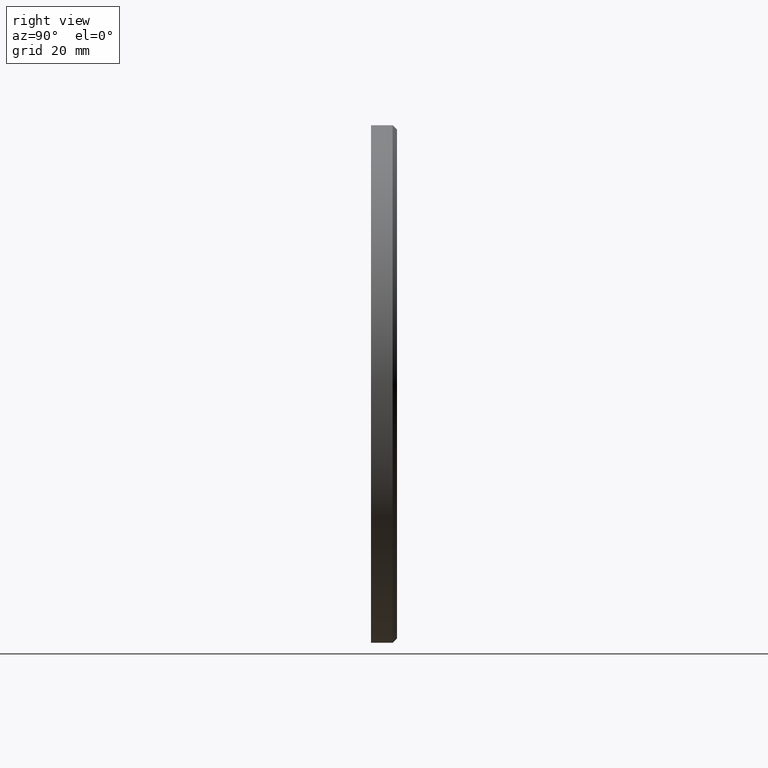
[diagram: clean part render]
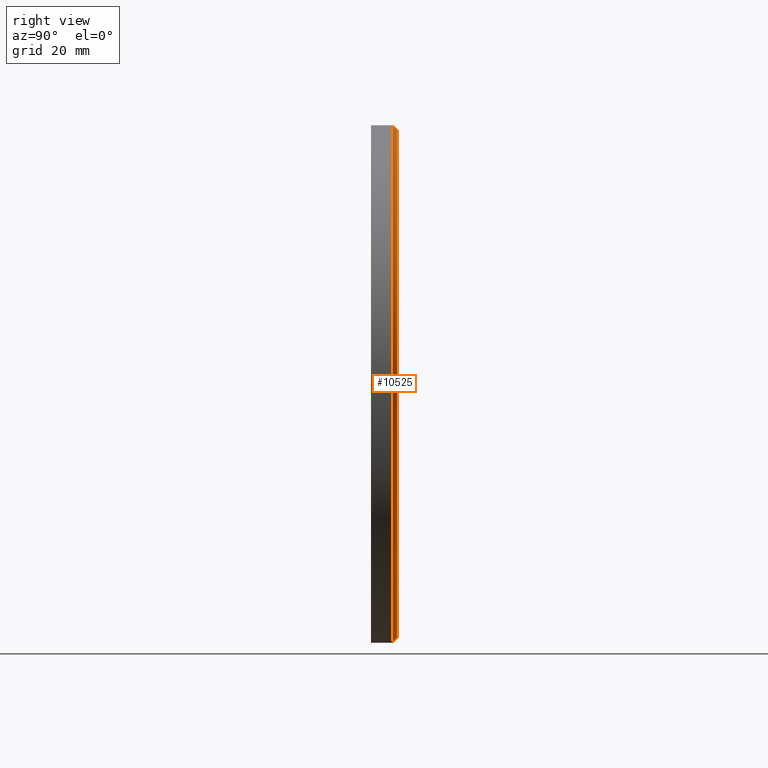
[diagram: same view with one face highlighted and labeled with its STEP entity id]
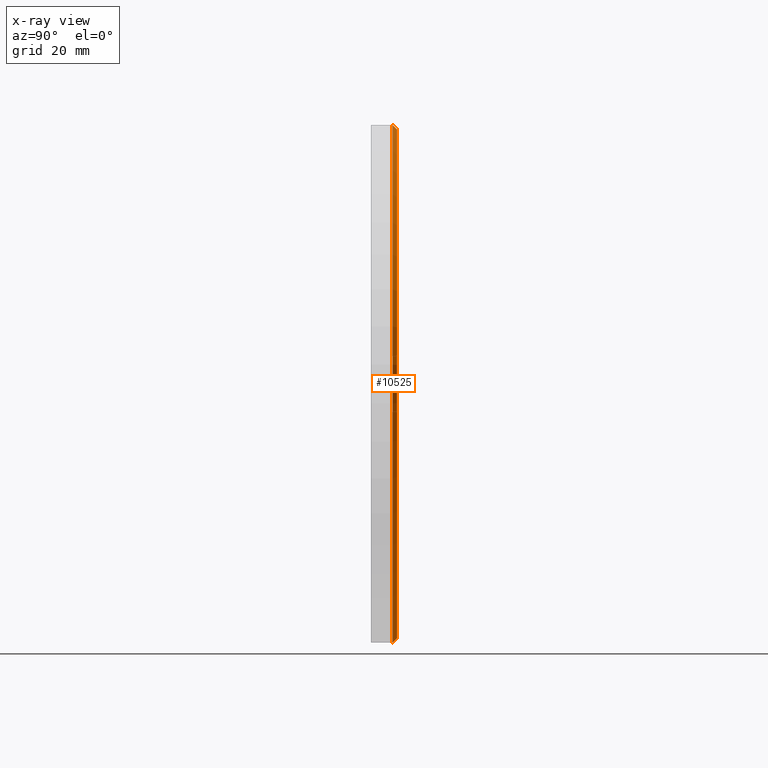
[diagram: x-ray of the same camera — body ghosted, the highlighted face saturated]
A machine part, right view. The second image highlights one B-rep face of the part: STEP entity #10525.
The next image is the same camera in x-ray: the body ghosted, the highlighted face saturated — about 0% of this face is hidden behind the body in this view.
In plain terms, the highlighted conical surface has half-angle 45 deg.
Its self-contained STEP definition (entity closure, byte-faithful):
#148 = AXIS2_PLACEMENT_3D ( 'NONE', #8820, #1446, #9893 ) ;
#326 = ORIENTED_EDGE ( 'NONE', *, *, #4838, .F. ) ;
#1355 = CIRCLE ( 'NONE', #148, 60.00000000000000000 ) ;
#1446 = DIRECTION ( 'NONE',  ( 0.000000000000000000, -1.000000000000000000, 0.000000000000000000 ) ) ;
#1730 = DIRECTION ( 'NONE',  ( 0.000000000000000000, -1.000000000000000000, 0.000000000000000000 ) ) ;
#1792 = ORIENTED_EDGE ( 'NONE', *, *, #5654, .F. ) ;
#1943 = CARTESIAN_POINT ( 'NONE',  ( 0.000000000000000000, 6.000000000000000000, 0.000000000000000000 ) ) ;
#2150 = VERTEX_POINT ( 'NONE', #11498 ) ;
#2452 = CARTESIAN_POINT ( 'NONE',  ( 7.347880794884118356E-15, 4.999999999999971578, 60.00000000000000000 ) ) ;
#2868 = LINE ( 'NONE', #7333, #9390 ) ;
#3201 = CARTESIAN_POINT ( 'NONE',  ( 0.000000000000000000, 6.000000000000000000, -58.99999999999998579 ) ) ;
#3743 = CONICAL_SURFACE ( 'NONE', #3971, 58.99999999999998579, 0.7853981633974415066 ) ;
#3971 = AXIS2_PLACEMENT_3D ( 'NONE', #8093, #1730, #11427 ) ;
#4304 = DIRECTION ( 'NONE',  ( 0.000000000000000000, 1.000000000000000000, 0.000000000000000000 ) ) ;
#4371 = ORIENTED_EDGE ( 'NONE', *, *, #8044, .T. ) ;
#4497 = VERTEX_POINT ( 'NONE', #2452 ) ;
#4727 = ORIENTED_EDGE ( 'NONE', *, *, #5216, .F. ) ;
#4838 = EDGE_CURVE ( 'NONE', #5758, #4497, #1355, .T. ) ;
#5216 = EDGE_CURVE ( 'NONE', #2150, #5758, #6681, .T. ) ;
#5654 = EDGE_CURVE ( 'NONE', #12027, #2150, #11176, .T. ) ;
#5758 = VERTEX_POINT ( 'NONE', #13012 ) ;
#6214 = AXIS2_PLACEMENT_3D ( 'NONE', #1943, #4304, #7280 ) ;
#6681 = LINE ( 'NONE', #3201, #7677 ) ;
#7280 = DIRECTION ( 'NONE',  ( 0.000000000000000000, 0.000000000000000000, 1.000000000000000000 ) ) ;
#7333 = CARTESIAN_POINT ( 'NONE',  ( 7.225416114969381630E-15, 6.000000000000000000, 58.99999999999998579 ) ) ;
#7677 = VECTOR ( 'NONE', #10644, 1000.000000000000000 ) ;
#8044 = EDGE_CURVE ( 'NONE', #12027, #4497, #2868, .T. ) ;
#8093 = CARTESIAN_POINT ( 'NONE',  ( 0.000000000000000000, 6.000000000000000000, 0.000000000000000000 ) ) ;
#8260 = DIRECTION ( 'NONE',  ( 8.659560562354874926E-17, -0.7071067811865524577, 0.7071067811865426878 ) ) ;
#8820 = CARTESIAN_POINT ( 'NONE',  ( 0.000000000000000000, 4.999999999999971578, 0.000000000000000000 ) ) ;
#9390 = VECTOR ( 'NONE', #8260, 1000.000000000000000 ) ;
#9893 = DIRECTION ( 'NONE',  ( 0.000000000000000000, 0.000000000000000000, 1.000000000000000000 ) ) ;
#10525 = ADVANCED_FACE ( 'NONE', ( #11079 ), #3743, .T. ) ;
#10644 = DIRECTION ( 'NONE',  ( 0.000000000000000000, -0.7071067811865524577, -0.7071067811865426878 ) ) ;
#10707 = CARTESIAN_POINT ( 'NONE',  ( 7.286648454926750781E-15, 6.000000000000000000, 58.99999999999998579 ) ) ;
#11079 = FACE_OUTER_BOUND ( 'NONE', #13374, .T. ) ;
#11176 = CIRCLE ( 'NONE', #6214, 58.99999999999998579 ) ;
#11427 = DIRECTION ( 'NONE',  ( 0.000000000000000000, 0.000000000000000000, -1.000000000000000000 ) ) ;
#11498 = CARTESIAN_POINT ( 'NONE',  ( 0.000000000000000000, 6.000000000000000000, -58.99999999999998579 ) ) ;
#12027 = VERTEX_POINT ( 'NONE', #10707 ) ;
#13012 = CARTESIAN_POINT ( 'NONE',  ( 0.000000000000000000, 4.999999999999971578, -60.00000000000000000 ) ) ;
#13374 = EDGE_LOOP ( 'NONE', ( #1792, #4371, #326, #4727 ) ) ;